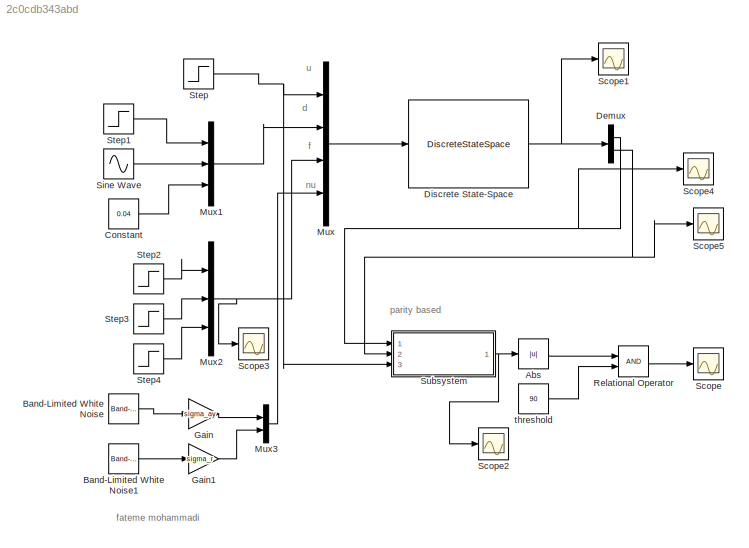
MODEL slx_2c0cdb343abd
KIND model
CONFIG AbsTol = auto
CONFIG EnableMultiTasking = off
CONFIG FixedStep = auto
CONFIG MaxStep = auto
CONFIG MinStep = auto
CONFIG RelTol = 1e-3
CONFIG SampleTimeConstraint = Unconstrained
CONFIG SolverName = VariableStepAuto
CONFIG StartTime = 0.0
CONFIG StopTime = 10.0
BLOCK [Abs] Abs
  SaturateOnIntegerOverflow = off
BLOCK [Reference] Band-Limited White Noise  REF=simulink/Sources/Band-Limited
White Noise
  Ports = [0, 1]
  SourceBlock = simulink/Sources/Band-Limited\nWhite Noise
  SourceProductBaseCode = SL
  SourceType = Band-Limited White Noise.
BLOCK [Reference] Band-Limited White Noise1  REF=simulink/Sources/Band-Limited
White Noise
  Ports = [0, 1]
  SourceBlock = simulink/Sources/Band-Limited\nWhite Noise
  SourceProductBaseCode = SL
  SourceType = Band-Limited White Noise.
BLOCK [Constant] Constant
  SampleTime = 0.01
  Value = 0.04
BLOCK [Demux] Demux
  Outputs = 2
  Ports = [1, 2]
BLOCK [DiscreteStateSpace] Discrete State-Space
  A = Ad
  B = Bdd
  C = Cd
  D = Ddd
  SampleTime = 0.01
BLOCK [Gain] Gain
  Gain = sigma_ay
BLOCK [Gain] Gain1
  Gain = sigma_r
BLOCK [Mux] Mux
  DisplayOption = bar
  Ports = [4, 1]
BLOCK [Mux] Mux1
  DisplayOption = bar
  Inputs = 3
  Ports = [3, 1]
BLOCK [Mux] Mux2
  DisplayOption = bar
  Inputs = 3
  Ports = [3, 1]
BLOCK [Mux] Mux3
  DisplayOption = bar
  Inputs = 2
  Ports = [2, 1]
BLOCK [RelationalOperator] Relational Operator
  InputSameDT = off
  OutDataTypeStr = boolean
  Ports = [2, 1]
  RndMeth = Simplest
BLOCK [Scope] Scope
  Floating = off
  NumInputPorts = 1
  Ports = [1]
  ScopeSpecificationString = Simulink.scopes.TimeScopeBlockCfg('CurrentConfiguration', extmgr.ConfigurationSet(extmgr.Configuration('Core','General UI',true,'FigureColor',[1 1 1]),extmgr.Configuration('Core','Source UI',true),extmgr.Configuration('Sources','WiredSimulink',true),extmgr.Configuration('Visuals','Time Domain',true,'SerializedDisplays',{struct('MinYLimReal','-0.125','MaxYLimReal','1.125','YLabelReal','','MinYLimMa...<+1601ch>
BLOCK [Scope] Scope1
  Floating = off
  NumInputPorts = 1
  Ports = [1]
  ScopeSpecificationString = Simulink.scopes.TimeScopeBlockCfg('CurrentConfiguration', extmgr.ConfigurationSet(extmgr.Configuration('Core','General UI',true,'FigureColor',[1 1 1]),extmgr.Configuration('Core','Source UI',true),extmgr.Configuration('Sources','WiredSimulink',true,'DataLoggingVariableName','ScopeData1'),extmgr.Configuration('Visuals','Time Domain',true,'SerializedDisplays',{struct('MinYLimReal','-48.45049','MaxYL...<+1690ch>
BLOCK [Scope] Scope2
  Floating = off
  NumInputPorts = 1
  Ports = [1]
  ScopeSpecificationString = Simulink.scopes.TimeScopeBlockCfg('CurrentConfiguration', extmgr.ConfigurationSet(extmgr.Configuration('Core','General UI',true,'FigureColor',[1 1 1]),extmgr.Configuration('Core','Source UI',true),extmgr.Configuration('Sources','WiredSimulink',true,'DataLoggingVariableName','ScopeData2'),extmgr.Configuration('Visuals','Time Domain',true,'SerializedDisplays',{struct('MinYLimReal','-647.67896','MaxY...<+1654ch>
BLOCK [Scope] Scope3
  Floating = off
  NumInputPorts = 1
  Ports = [1]
  ScopeSpecificationString = Simulink.scopes.TimeScopeBlockCfg('CurrentConfiguration', extmgr.ConfigurationSet(extmgr.Configuration('Core','General UI',true),extmgr.Configuration('Core','Source UI',true),extmgr.Configuration('Sources','WiredSimulink',true,'DataLoggingVariableName','ScopeData3'),extmgr.Configuration('Visuals','Time Domain',true,'SerializedDisplays',{struct('MinYLimReal','-0.1','MaxYLimReal','0.9','YLabelReal',...<+1356ch>
BLOCK [Scope] Scope4
  Floating = off
  NumInputPorts = 1
  Ports = [1]
  ScopeSpecificationString = Simulink.scopes.TimeScopeBlockCfg('CurrentConfiguration', extmgr.ConfigurationSet(extmgr.Configuration('Core','General UI',true),extmgr.Configuration('Core','Source UI',true),extmgr.Configuration('Sources','WiredSimulink',true,'DataLoggingVariableName','ScopeData1'),extmgr.Configuration('Visuals','Time Domain',true,'SerializedDisplays',{struct('MinYLimReal','-15.24583','MaxYLimReal','125.82935','Y...<+1523ch>
BLOCK [Scope] Scope5
  Floating = off
  NumInputPorts = 1
  Ports = [1]
  ScopeSpecificationString = Simulink.scopes.TimeScopeBlockCfg('CurrentConfiguration', extmgr.ConfigurationSet(extmgr.Configuration('Core','General UI',true),extmgr.Configuration('Core','Source UI',true),extmgr.Configuration('Sources','WiredSimulink',true,'DataLoggingVariableName','ScopeData2'),extmgr.Configuration('Visuals','Time Domain',true,'SerializedDisplays',{struct('MinYLimReal','-0.73691','MaxYLimReal','3.67373','YLab...<+1513ch>
BLOCK [Sin] Sine Wave
  Amplitude = 0.03
  Frequency = 0.5
  Ports = [0, 1]
  SampleTime = 0.01
BLOCK [Step] Step
  SampleTime = 0.01
BLOCK [Step] Step1
  After = 0.05
  SampleTime = 0.01
  Time = 3
BLOCK [Step] Step2
  After = 0.5
  SampleTime = 0.01
  Time = 3
BLOCK [Step] Step3
  SampleTime = 0.01
  Time = 5
BLOCK [Step] Step4
  After = 0.8
  SampleTime = 0.01
  Time = 7
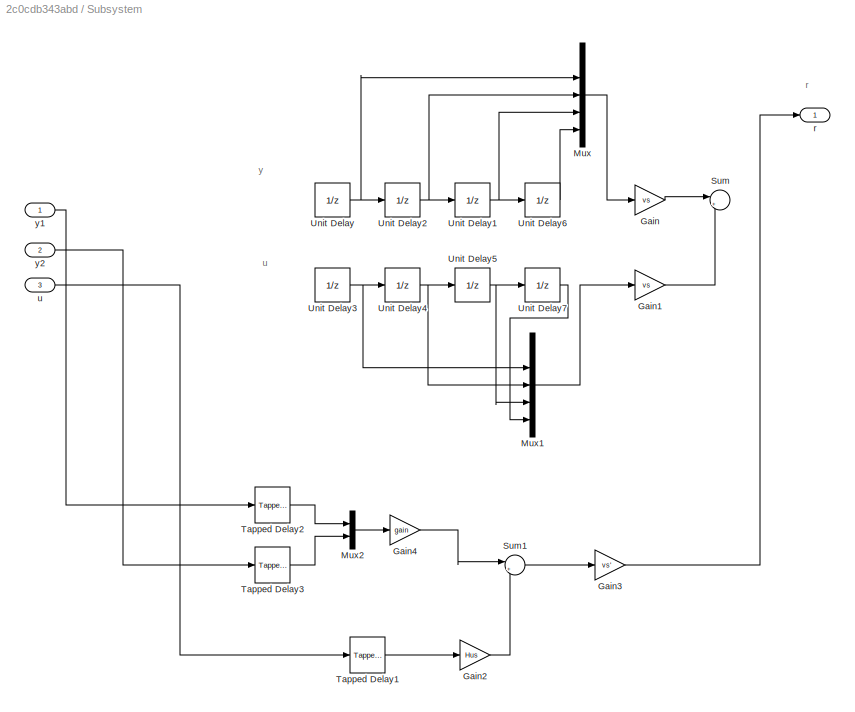
BLOCK [SubSystem] Subsystem
  Ports = [3, 1]
  RequestExecContextInheritance = off
BLOCK [Gain] Subsystem/Gain
  Commented = on
  Gain = vs
  Multiplication = Matrix(K*u)
BLOCK [Gain] Subsystem/Gain1
  Commented = on
  Gain = vs
  Multiplication = Matrix(K*u)
BLOCK [Gain] Subsystem/Gain2
  Gain = Hus
  Multiplication = Matrix(K*u)
BLOCK [Gain] Subsystem/Gain3
  Gain = vs'
  Multiplication = Matrix(K*u)
BLOCK [Gain] Subsystem/Gain4
  Gain = gain
  Multiplication = Matrix(K*u)
BLOCK [Mux] Subsystem/Mux
  Commented = on
  DisplayOption = bar
  Inputs = 5
  Ports = [5, 1]
BLOCK [Mux] Subsystem/Mux1
  Commented = on
  DisplayOption = bar
  Inputs = 5
  Ports = [5, 1]
BLOCK [Mux] Subsystem/Mux2
  DisplayOption = bar
  Inputs = 2
  Ports = [2, 1]
BLOCK [Sum] Subsystem/Sum
  Commented = on
  Inputs = |++
  Ports = [2, 1]
BLOCK [Sum] Subsystem/Sum1
  Inputs = |+-
  Ports = [2, 1]
BLOCK [Reference] Subsystem/Tapped Delay1  REF=simulink/Discrete/Tapped Delay
  Ports = [1, 1]
  SourceBlock = simulink/Discrete/Tapped Delay
  SourceProductBaseCode = SL
  SourceType = Tapped Delay Line
BLOCK [Reference] Subsystem/Tapped Delay2  REF=simulink/Discrete/Tapped Delay
  Ports = [1, 1]
  SourceBlock = simulink/Discrete/Tapped Delay
  SourceProductBaseCode = SL
  SourceType = Tapped Delay Line
BLOCK [Reference] Subsystem/Tapped Delay3  REF=simulink/Discrete/Tapped Delay
  Ports = [1, 1]
  SourceBlock = simulink/Discrete/Tapped Delay
  SourceProductBaseCode = SL
  SourceType = Tapped Delay Line
BLOCK [UnitDelay] Subsystem/Unit Delay
  Commented = on
  HasFrameUpgradeWarning = on
  SampleTime = 0.01
BLOCK [UnitDelay] Subsystem/Unit Delay1
  Commented = on
  HasFrameUpgradeWarning = on
  SampleTime = 0.01
BLOCK [UnitDelay] Subsystem/Unit Delay2
  Commented = on
  HasFrameUpgradeWarning = on
  SampleTime = 0.01
BLOCK [UnitDelay] Subsystem/Unit Delay3
  Commented = on
  HasFrameUpgradeWarning = on
  SampleTime = 0.01
BLOCK [UnitDelay] Subsystem/Unit Delay4
  Commented = on
  HasFrameUpgradeWarning = on
  SampleTime = 0.01
BLOCK [UnitDelay] Subsystem/Unit Delay5
  Commented = on
  HasFrameUpgradeWarning = on
  SampleTime = 0.01
BLOCK [UnitDelay] Subsystem/Unit Delay6
  Commented = on
  HasFrameUpgradeWarning = on
  SampleTime = 0.01
BLOCK [UnitDelay] Subsystem/Unit Delay7
  Commented = on
  HasFrameUpgradeWarning = on
  SampleTime = 0.01
BLOCK [Outport] Subsystem/r
BLOCK [Inport] Subsystem/u
  Port = 3
BLOCK [Inport] Subsystem/y1
BLOCK [Inport] Subsystem/y2
  Port = 2
BLOCK [Constant] threshold
  Value = 90
ANNOTATION (root): fateme mohammadi
ANNOTATION (root): d
ANNOTATION (root): f
ANNOTATION (root): nu
ANNOTATION (root): parity based
ANNOTATION (root): u
ANNOTATION Subsystem: r
ANNOTATION Subsystem: u
ANNOTATION Subsystem: y
LINE Abs:1 -> Relational Operator:1
LINE Band-Limited White Noise1:1 -> Gain1:1
LINE Band-Limited White Noise:1 -> Gain:1
LINE Constant:1 -> Mux1:3
NET Demux:1 -> Scope4:1, Subsystem:1
NET Demux:2 -> Scope5:1, Subsystem:2
NET Discrete State-Space:1 -> Demux:1, Scope1:1
LINE Gain1:1 -> Mux3:2
LINE Gain:1 -> Mux3:1
LINE Mux1:1 -> Mux:2
NET Mux2:1 -> Mux:3, Scope3:1
LINE Mux3:1 -> Mux:4
LINE Mux:1 -> Discrete State-Space:1
LINE Relational Operator:1 -> Scope:1
LINE Sine Wave:1 -> Mux1:2
LINE Step1:1 -> Mux1:1
LINE Step2:1 -> Mux2:1
LINE Step3:1 -> Mux2:2
LINE Step4:1 -> Mux2:3
NET Step:1 -> Mux:1, Subsystem:3
LINE Subsystem/Gain1:1 -> Subsystem/Sum:2
LINE Subsystem/Gain2:1 -> Subsystem/Sum1:2
LINE Subsystem/Gain3:1 -> Subsystem/r:1
LINE Subsystem/Gain4:1 -> Subsystem/Sum1:1
LINE Subsystem/Gain:1 -> Subsystem/Sum:1
LINE Subsystem/Mux1:1 -> Subsystem/Gain1:1
LINE Subsystem/Mux2:1 -> Subsystem/Gain4:1
LINE Subsystem/Mux:1 -> Subsystem/Gain:1
LINE Subsystem/Sum1:1 -> Subsystem/Gain3:1
LINE Subsystem/Tapped Delay1:1 -> Subsystem/Gain2:1
LINE Subsystem/Tapped Delay2:1 -> Subsystem/Mux2:1
LINE Subsystem/Tapped Delay3:1 -> Subsystem/Mux2:2
NET Subsystem/Unit Delay1:1 -> Subsystem/Mux:4, Subsystem/Unit Delay6:1
NET Subsystem/Unit Delay2:1 -> Subsystem/Mux:3, Subsystem/Unit Delay1:1
NET Subsystem/Unit Delay3:1 -> Subsystem/Mux1:2, Subsystem/Unit Delay4:1
NET Subsystem/Unit Delay4:1 -> Subsystem/Mux1:3, Subsystem/Unit Delay5:1
NET Subsystem/Unit Delay5:1 -> Subsystem/Mux1:4, Subsystem/Unit Delay7:1
LINE Subsystem/Unit Delay6:1 -> Subsystem/Mux:5
LINE Subsystem/Unit Delay7:1 -> Subsystem/Mux1:5
NET Subsystem/Unit Delay:1 -> Subsystem/Mux:2, Subsystem/Unit Delay2:1
LINE Subsystem/u:1 -> Subsystem/Tapped Delay1:1
LINE Subsystem/y1:1 -> Subsystem/Tapped Delay2:1
LINE Subsystem/y2:1 -> Subsystem/Tapped Delay3:1
NET Subsystem:1 -> Abs:1, Scope2:1
LINE threshold:1 -> Relational Operator:2
note: NET lines group one-source signal fan-out (src -> all destinations, sorted); 1:1 wires keep LINE
